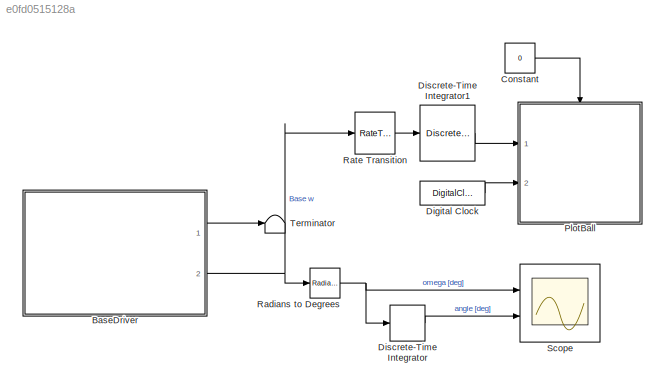
MODEL slx_e0fd0515128a
KIND model
CONFIG AbsTol = auto
CONFIG EnableMultiTasking = off
CONFIG FixedStep = auto
CONFIG MaxStep = auto
CONFIG MinStep = auto
CONFIG RelTol = 1e-3
CONFIG SampleTimeConstraint = Unconstrained
CONFIG SolverName = VariableStepAuto
CONFIG StartTime = 0.0
CONFIG StopTime = 100
BLOCK [SubSystem] BaseDriver
  Ports = [0, 2]
  ReferencedSubsystem = BaseDriver
  RequestExecContextInheritance = off
BLOCK [Constant] Constant
  OpenFcn = if get_param(gcbh,'value')-48\n   set_param(gcbh,'value','0','backgroundcolor','red');\nelse\n   set_param(gcbh,'value','1','backgroundcolor','green');\nend
  SampleTime = 0.016
  Value = 0
BLOCK [DigitalClock] Digital Clock
  SampleTime = ts_camera
BLOCK [DiscreteIntegrator] Discrete-Time Integrator
  ICPrevOutput = DiscIntNeverNeededParam
  ICPrevScaledInput = DiscIntNeverNeededParam
  InitialConditionSetting = Auto
  Ports = [1, 1]
  SampleTime = -1
BLOCK [DiscreteIntegrator] Discrete-Time Integrator1
  ICPrevOutput = DiscIntNeverNeededParam
  ICPrevScaledInput = DiscIntNeverNeededParam
  InitialConditionSetting = Auto
  Ports = [1, 1]
  SampleTime = -1
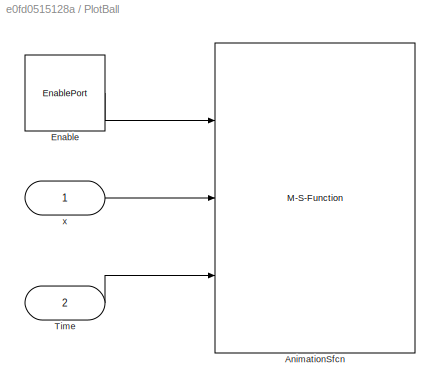
BLOCK [SubSystem] PlotBall
  OpenFcn = UserData = get_param([gcb,'/AnimationSfcn'],'UserData');\nFig = UserData.Figure;\nif ishghandle(Fig,'figure');\n   %bring to the front:\n   figure(Fig);\nend
  Ports = [2, 0, 1]
  RequestExecContextInheritance = off
BLOCK [M-S-Function] PlotBall/AnimationSfcn
  FunctionName = Sfcn_DrawBall
  Parameters = [maxAngles(1)*[-2,2];maxAngles(2)*[-2,2];maxAngles(3)*[-2,2]]
  Ports = [3]
BLOCK [EnablePort] PlotBall/Enable
  Ports = [0, 1]
  ShowOutputPort = on
  StatesWhenEnabling = reset
BLOCK [Inport] PlotBall/Time
  Port = 2
BLOCK [Inport] PlotBall/x
BLOCK [Reference] Radians to Degrees  REF=simulink_extras/Transformations/Radians
to Degrees
  Ports = [1, 1]
  SourceBlock = simulink_extras/Transformations/Radians\nto Degrees
  SourceProductBaseCode = SL
  SourceType = RadiansToDegrees
BLOCK [RateTransition] Rate Transition
BLOCK [Scope] Scope
  Floating = off
  NumInputPorts = 2
  Ports = [2]
  ScopeSpecificationString = Simulink.scopes.TimeScopeBlockCfg('CurrentConfiguration', extmgr.ConfigurationSet(extmgr.Configuration('Core','General UI',true),extmgr.Configuration('Core','Source UI',true),extmgr.Configuration('Sources','WiredSimulink',true),extmgr.Configuration('Visuals','Time Domain',true,'SerializedDisplays',{struct('MinYLimReal','-11.98519','MaxYLimReal','12.11605','YLabelReal','','MinYLimMag','0.00000','Ma...<+2102ch>
BLOCK [Terminator] Terminator
LINE BaseDriver:1 -> Terminator:1
NET BaseDriver:2 -> Radians to Degrees:1, Rate Transition:1
LINE Constant:1 -> PlotBall:enable
LINE Digital Clock:1 -> PlotBall:2
LINE Discrete-Time Integrator1:1 -> PlotBall:1
LINE Discrete-Time Integrator:1 -> Scope:2
LINE PlotBall/Enable:1 -> PlotBall/AnimationSfcn:1
LINE PlotBall/Time:1 -> PlotBall/AnimationSfcn:3
LINE PlotBall/x:1 -> PlotBall/AnimationSfcn:2
NET Radians to Degrees:1 -> Discrete-Time Integrator:1, Scope:1
LINE Rate Transition:1 -> Discrete-Time Integrator1:1
note: NET lines group one-source signal fan-out (src -> all destinations, sorted); 1:1 wires keep LINE
